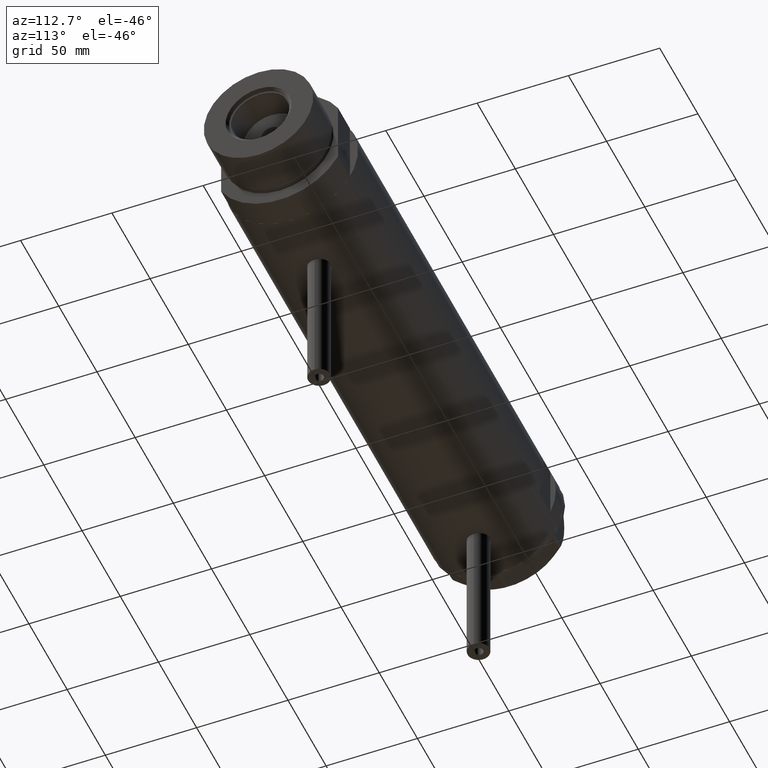
[diagram: clean part render]
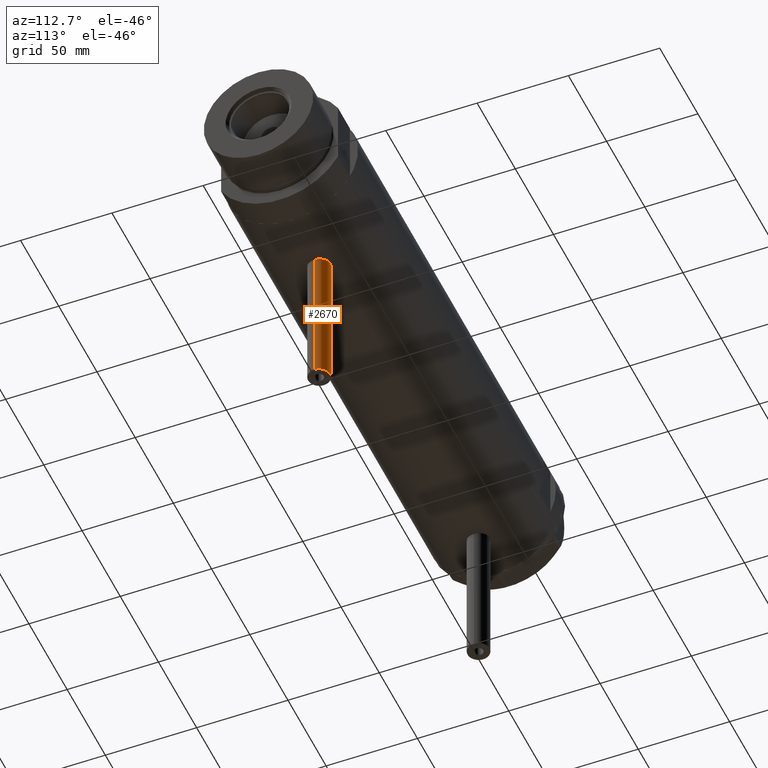
[diagram: same view with one face highlighted and labeled with its STEP entity id]
A machine part, auxiliary view. The second image highlights one B-rep face of the part: STEP entity #2670.
In plain terms, the highlighted cylindrical surface (edge-blend (fillet) strip) has radius 6 mm, axis along (0, 0, 1).
Its self-contained STEP definition (entity closure, byte-faithful):
#7 = VERTEX_POINT ( 'NONE', #3326 ) ;
#16 = CARTESIAN_POINT ( 'NONE',  ( -116.0000000000000000, 0.000000000000000000, -98.20000000000000284 ) ) ;
#326 = DIRECTION ( 'NONE',  ( 0.000000000000000000, 0.000000000000000000, -1.000000000000000000 ) ) ;
#928 = DIRECTION ( 'NONE',  ( 0.000000000000000000, 0.000000000000000000, 1.000000000000000000 ) ) ;
#981 = DIRECTION ( 'NONE',  ( -1.000000000000000000, 0.000000000000000000, 0.000000000000000000 ) ) ;
#1033 = DIRECTION ( 'NONE',  ( 1.000000000000000000, -0.000000000000000000, -0.000000000000000000 ) ) ;
#1159 = AXIS2_PLACEMENT_3D ( 'NONE', #3402, #4461, #3786 ) ;
#1190 = EDGE_CURVE ( 'NONE', #4203, #1303, #3012, .T. ) ;
#1303 = VERTEX_POINT ( 'NONE', #2987 ) ;
#1396 = AXIS2_PLACEMENT_3D ( 'NONE', #16, #1033, #326 ) ;
#1462 = VECTOR ( 'NONE', #2546, 1000.000000000000000 ) ;
#1592 = CARTESIAN_POINT ( 'NONE',  ( -116.0000000000000000, 0.000000000000000000, -104.2000000000000171 ) ) ;
#1658 = EDGE_CURVE ( 'NONE', #7, #1303, #2001, .T. ) ;
#1668 = ORIENTED_EDGE ( 'NONE', *, *, #2972, .F. ) ;
#1832 = EDGE_CURVE ( 'NONE', #1910, #7, #4402, .T. ) ;
#1866 = CIRCLE ( 'NONE', #2098, 6.000000000000005329 ) ;
#1910 = VERTEX_POINT ( 'NONE', #2574 ) ;
#2001 = CIRCLE ( 'NONE', #1159, 6.000000000000005329 ) ;
#2098 = AXIS2_PLACEMENT_3D ( 'NONE', #3161, #981, #928 ) ;
#2259 = DIRECTION ( 'NONE',  ( 1.000000000000000000, -0.000000000000000000, -0.000000000000000000 ) ) ;
#2546 = DIRECTION ( 'NONE',  ( 1.000000000000000000, -0.000000000000000000, -0.000000000000000000 ) ) ;
#2553 = VECTOR ( 'NONE', #2259, 1000.000000000000000 ) ;
#2559 = ORIENTED_EDGE ( 'NONE', *, *, #1658, .T. ) ;
#2574 = CARTESIAN_POINT ( 'NONE',  ( -116.0000000000000000, 7.347880794884119736E-16, -92.20000000000000284 ) ) ;
#2627 = CARTESIAN_POINT ( 'NONE',  ( -116.0000000000000000, 0.000000000000000000, -104.2000000000000171 ) ) ;
#2670 = ADVANCED_FACE ( 'NONE', ( #4045 ), #4778, .T. ) ;
#2807 = ORIENTED_EDGE ( 'NONE', *, *, #1832, .T. ) ;
#2972 = EDGE_CURVE ( 'NONE', #1910, #4203, #1866, .T. ) ;
#2987 = CARTESIAN_POINT ( 'NONE',  ( -35.29999999999999716, 0.000000000000000000, -104.2000000000000171 ) ) ;
#3012 = LINE ( 'NONE', #2627, #2553 ) ;
#3161 = CARTESIAN_POINT ( 'NONE',  ( -116.0000000000000000, 0.000000000000000000, -98.20000000000000284 ) ) ;
#3326 = CARTESIAN_POINT ( 'NONE',  ( -35.29999999999999716, 7.347880794884119736E-16, -92.20000000000000284 ) ) ;
#3402 = CARTESIAN_POINT ( 'NONE',  ( -35.29999999999999716, 0.000000000000000000, -98.20000000000000284 ) ) ;
#3635 = CARTESIAN_POINT ( 'NONE',  ( -116.0000000000000000, 7.347880794884122694E-16, -92.20000000000000284 ) ) ;
#3786 = DIRECTION ( 'NONE',  ( 0.000000000000000000, 0.000000000000000000, 1.000000000000000000 ) ) ;
#4045 = FACE_OUTER_BOUND ( 'NONE', #4147, .T. ) ;
#4147 = EDGE_LOOP ( 'NONE', ( #1668, #2807, #2559, #4775 ) ) ;
#4203 = VERTEX_POINT ( 'NONE', #1592 ) ;
#4402 = LINE ( 'NONE', #3635, #1462 ) ;
#4461 = DIRECTION ( 'NONE',  ( -1.000000000000000000, 0.000000000000000000, 0.000000000000000000 ) ) ;
#4775 = ORIENTED_EDGE ( 'NONE', *, *, #1190, .F. ) ;
#4778 = CYLINDRICAL_SURFACE ( 'NONE', #1396, 6.000000000000005329 ) ;